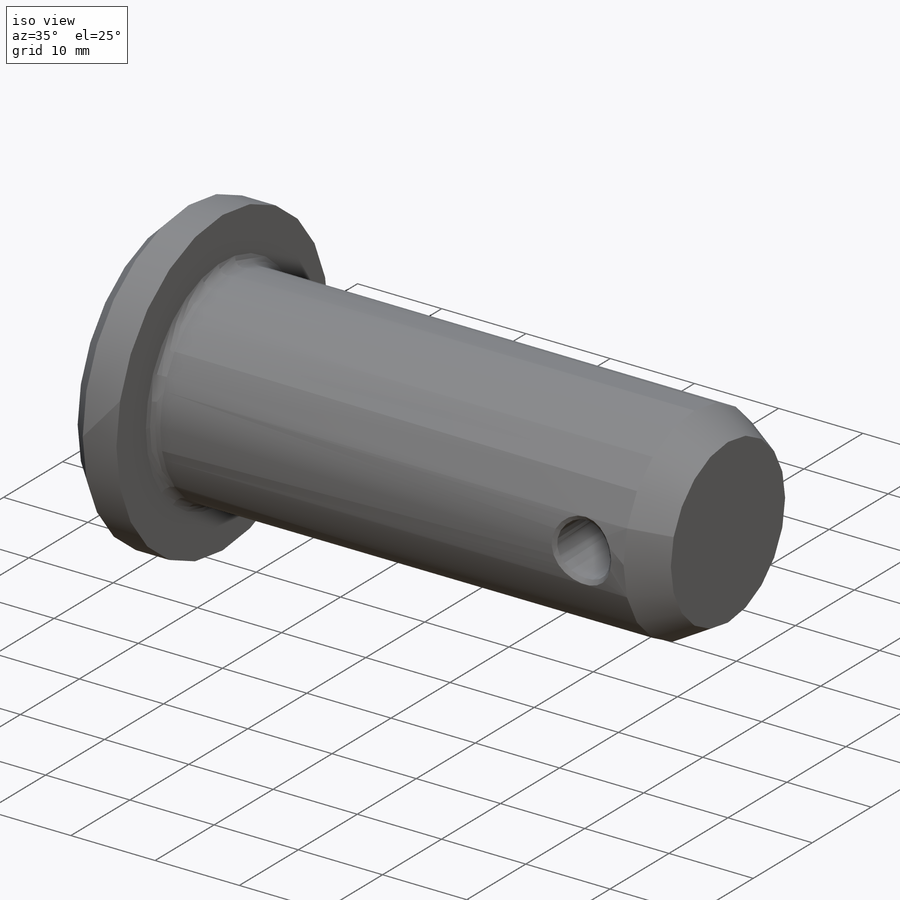
[diagram: iso view]
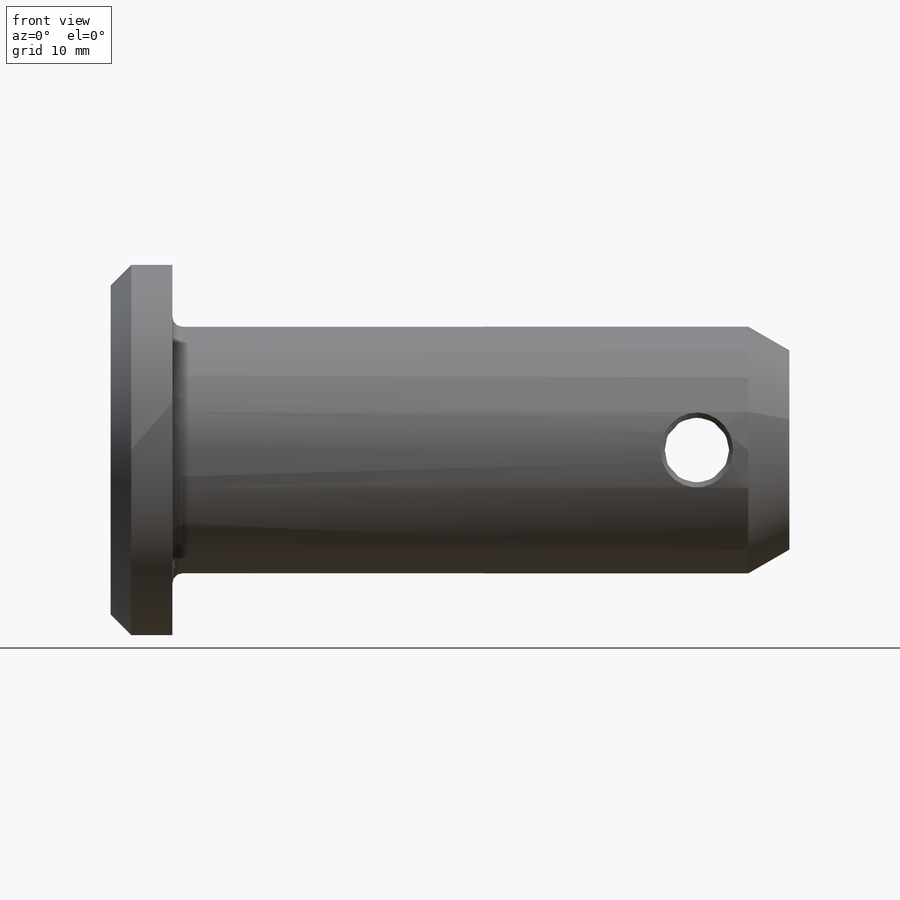
[diagram: front view]
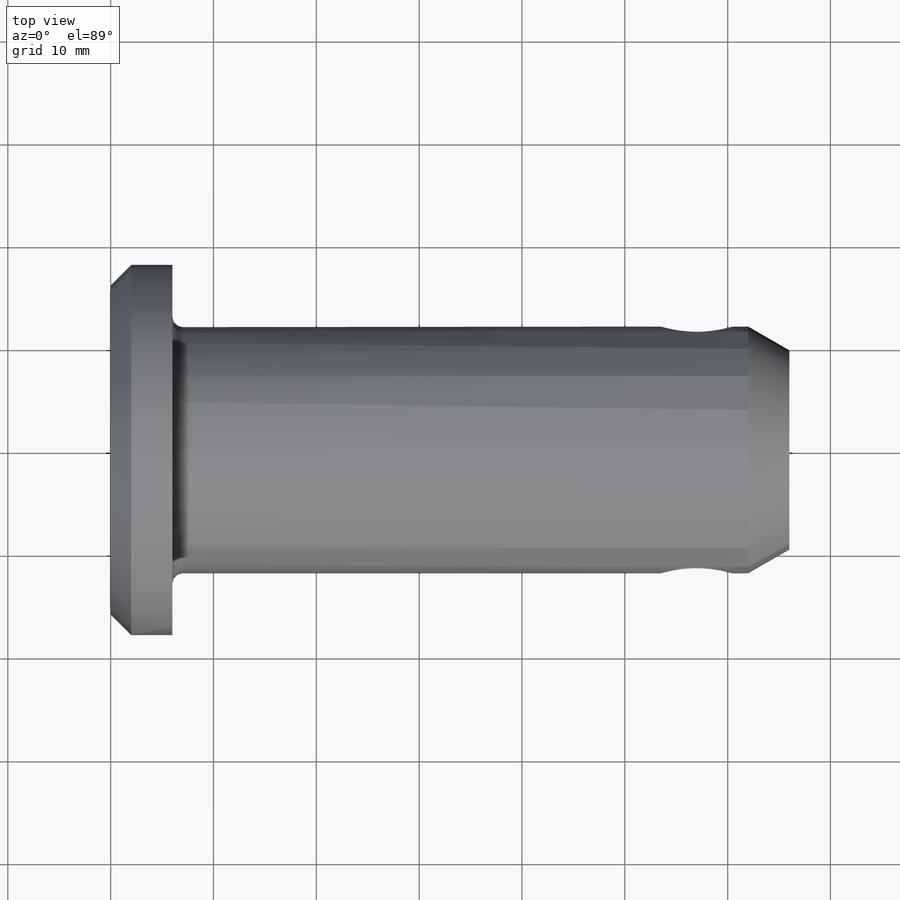
[diagram: top view]
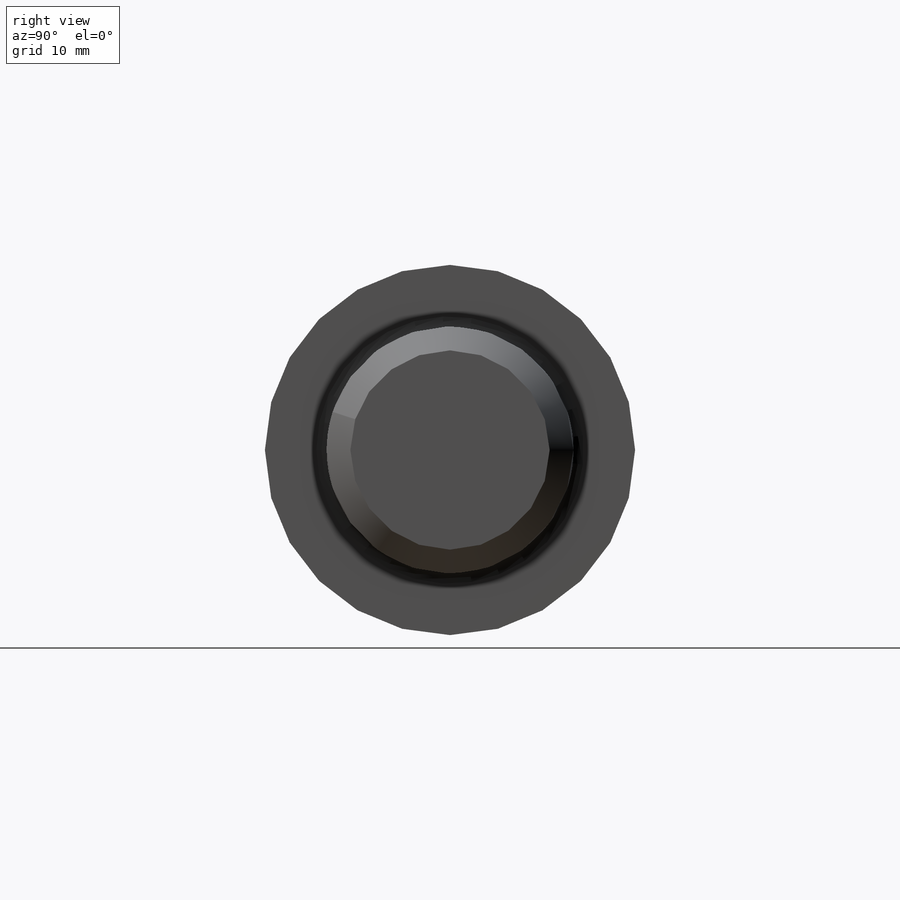
[diagram: right view]
SOLIDWORKS PART (.sldprt)
format: sldprt  version: not decoded by parser v0  size: 299,008 bytes
history: native  units: mm
features: revolve x4, plane x3, sketch x2, material x1, cut_extrude x1, chamfer x1 (+12 scaffold rows collapsed; 1 parser-record rows omitted)
feature tree (25):
  parser-record x1  (decoder bookkeeping rows leaked as tree rows — omitted from the tree; the rows remain in map.json)
  scaffold x12  (default folders/planes/origin — collapsed)
  material  "Material <nicht festgelegt>"
  plane  "Plane1"
  plane  "Plane2"
  plane  "Plane3"
  sketch  "Sketch1"  dims[c1.Head_fillet_radius=0.6mm c1.Point_ch_dia=23.495mm c1.Shank_dia=14.0mm c1.Head_dia=22.0mm c1.Head_ht=4.0mm c1.Head_ch_len=1.6mm c1.D1=6.0228mm c1.Head_ch_ang=45.0deg c1.Length=50.0mm c1.Point_ch_len=3.0mm c2.D1=56.96mm c3.D1=~183.612004deg c4.D1=56.96mm c5.D1=30.0deg]
  revolve  "BaseBody"  Angle=360deg
  sketch  "Sketch2"  dims[Hole_dia=4.0mm Head_to_hole=56.6166mm End_to_hole=6.0mm]
  cut_extrude  "Hole"  Depth=14mm
  chamfer  "HoleChamfers"  Distance=0.5mm Angle=45deg Hole_ch=0.5mm
  revolve  "ConfigurationName"  CopiedFlag=0  [1 undecoded]
  revolve  "PartNumberID"  [1 undecoded]
  revolve  "ConfigurationName"  CopiedFlag=0  [1 undecoded]
decode coverage: 7 of 8 modeling features carry decoded parameters
note: ~ marks probable driven/reference dimensions
note: 3 parameter values undecoded
summary: no parameter record found for 3 features
note: suppression state not decoded; provenance and decode notes live in map.json
